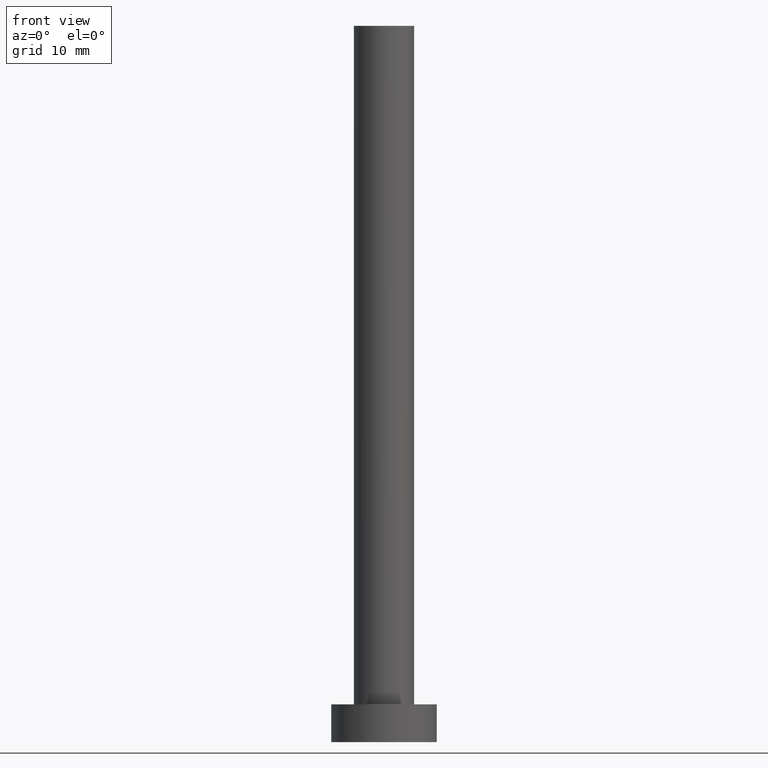
[diagram: clean part render]
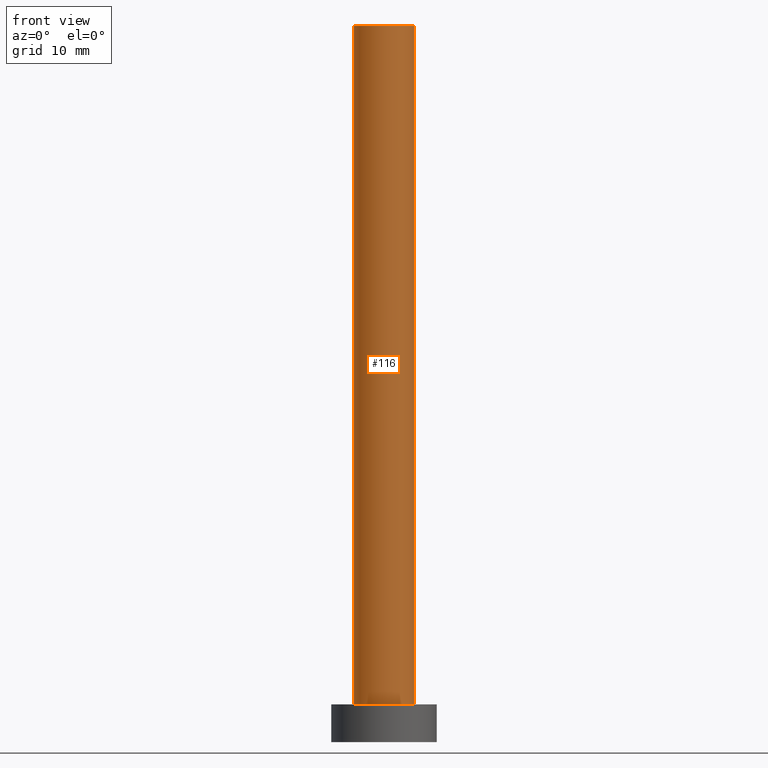
[diagram: same view with one face highlighted and labeled with its STEP entity id]
A machine part, front view. The second image highlights one B-rep face of the part: STEP entity #116.
In plain terms, the highlighted cylindrical surface (edge-blend (fillet) strip) has radius 4 mm, axis along (-0, -0, -1).
Its self-contained STEP definition (entity closure, byte-faithful):
#5 = ORIENTED_EDGE ( 'NONE', *, *, #21, .F. ) ;
#7 = VERTEX_POINT ( 'NONE', #243 ) ;
#18 = CARTESIAN_POINT ( 'NONE',  ( 0.000000000000000000, 0.000000000000000000, 95.00000000000000000 ) ) ;
#19 = VECTOR ( 'NONE', #210, 1000.000000000000000 ) ;
#21 = EDGE_CURVE ( 'NONE', #101, #57, #169, .T. ) ;
#23 = DIRECTION ( 'NONE',  ( -1.000000000000000000, 0.000000000000000000, 0.000000000000000000 ) ) ;
#31 = ORIENTED_EDGE ( 'NONE', *, *, #77, .F. ) ;
#43 = ORIENTED_EDGE ( 'NONE', *, *, #95, .T. ) ;
#53 = FACE_OUTER_BOUND ( 'NONE', #64, .T. ) ;
#57 = VERTEX_POINT ( 'NONE', #153 ) ;
#64 = EDGE_LOOP ( 'NONE', ( #5, #31, #43, #199 ) ) ;
#75 = DIRECTION ( 'NONE',  ( 1.000000000000000000, 0.000000000000000000, 0.000000000000000000 ) ) ;
#77 = EDGE_CURVE ( 'NONE', #7, #101, #120, .T. ) ;
#95 = EDGE_CURVE ( 'NONE', #7, #96, #223, .T. ) ;
#96 = VERTEX_POINT ( 'NONE', #211 ) ;
#101 = VERTEX_POINT ( 'NONE', #172 ) ;
#104 = EDGE_CURVE ( 'NONE', #96, #57, #109, .T. ) ;
#105 = DIRECTION ( 'NONE',  ( -0.000000000000000000, -0.000000000000000000, -1.000000000000000000 ) ) ;
#109 = CIRCLE ( 'NONE', #150, 4.000000000000000000 ) ;
#111 = DIRECTION ( 'NONE',  ( -0.000000000000000000, -0.000000000000000000, -1.000000000000000000 ) ) ;
#116 = ADVANCED_FACE ( 'NONE', ( #53 ), #130, .T. ) ;
#120 = CIRCLE ( 'NONE', #127, 4.000000000000000000 ) ;
#127 = AXIS2_PLACEMENT_3D ( 'NONE', #18, #173, #75 ) ;
#130 = CYLINDRICAL_SURFACE ( 'NONE', #245, 4.000000000000000000 ) ;
#132 = CARTESIAN_POINT ( 'NONE',  ( -4.000000000000000000, 0.000000000000000000, 95.00000000000000000 ) ) ;
#150 = AXIS2_PLACEMENT_3D ( 'NONE', #253, #228, #250 ) ;
#153 = CARTESIAN_POINT ( 'NONE',  ( 4.000000000000000000, 4.898587196589411843E-16, 5.000000000000000000 ) ) ;
#158 = CARTESIAN_POINT ( 'NONE',  ( 0.000000000000000000, 0.000000000000000000, 95.00000000000000000 ) ) ;
#169 = LINE ( 'NONE', #247, #254 ) ;
#172 = CARTESIAN_POINT ( 'NONE',  ( 4.000000000000000000, 4.898587196589411843E-16, 95.00000000000000000 ) ) ;
#173 = DIRECTION ( 'NONE',  ( 0.000000000000000000, 0.000000000000000000, 1.000000000000000000 ) ) ;
#199 = ORIENTED_EDGE ( 'NONE', *, *, #104, .T. ) ;
#210 = DIRECTION ( 'NONE',  ( -0.000000000000000000, -0.000000000000000000, -1.000000000000000000 ) ) ;
#211 = CARTESIAN_POINT ( 'NONE',  ( -4.000000000000000000, 0.000000000000000000, 5.000000000000000000 ) ) ;
#223 = LINE ( 'NONE', #132, #19 ) ;
#228 = DIRECTION ( 'NONE',  ( 0.000000000000000000, 0.000000000000000000, 1.000000000000000000 ) ) ;
#243 = CARTESIAN_POINT ( 'NONE',  ( -4.000000000000000000, 0.000000000000000000, 95.00000000000000000 ) ) ;
#245 = AXIS2_PLACEMENT_3D ( 'NONE', #158, #111, #23 ) ;
#247 = CARTESIAN_POINT ( 'NONE',  ( 4.000000000000000000, 4.898587196589411843E-16, 95.00000000000000000 ) ) ;
#250 = DIRECTION ( 'NONE',  ( 1.000000000000000000, 0.000000000000000000, 0.000000000000000000 ) ) ;
#253 = CARTESIAN_POINT ( 'NONE',  ( 0.000000000000000000, 0.000000000000000000, 5.000000000000000000 ) ) ;
#254 = VECTOR ( 'NONE', #105, 1000.000000000000000 ) ;